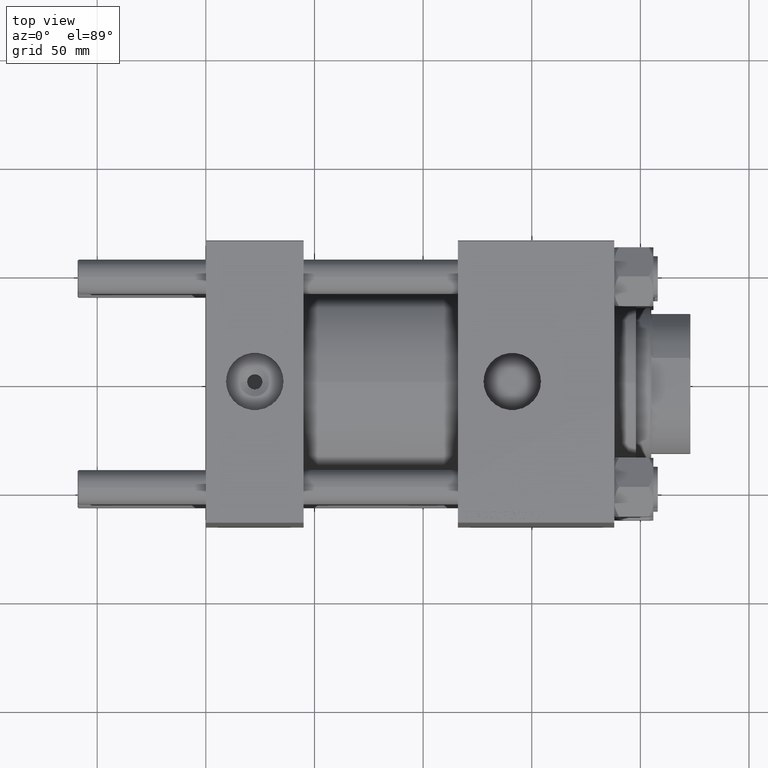
[diagram: clean part render]
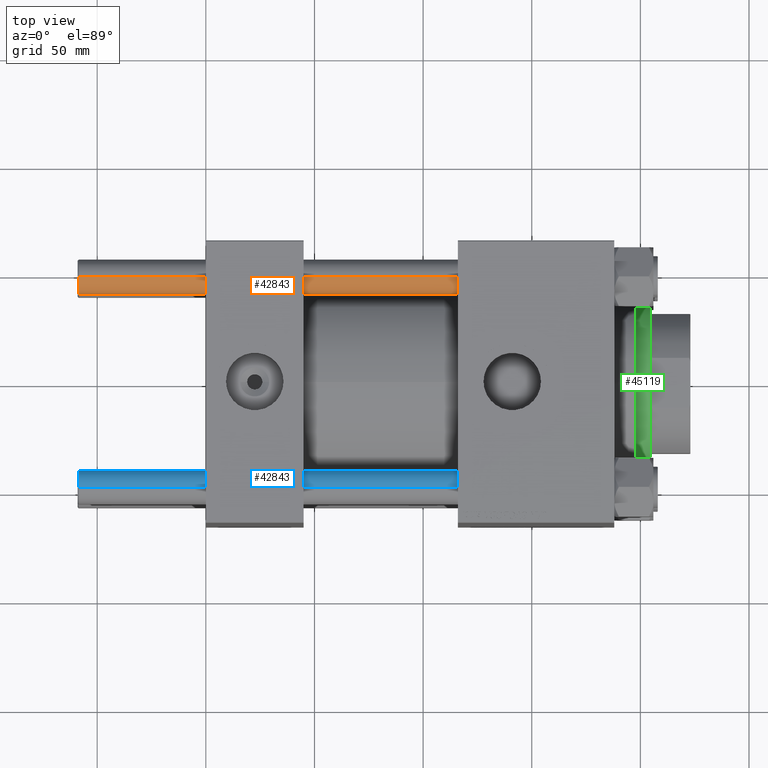
[diagram: same view with three faces highlighted in distinct colors, each labeled with its STEP entity id]
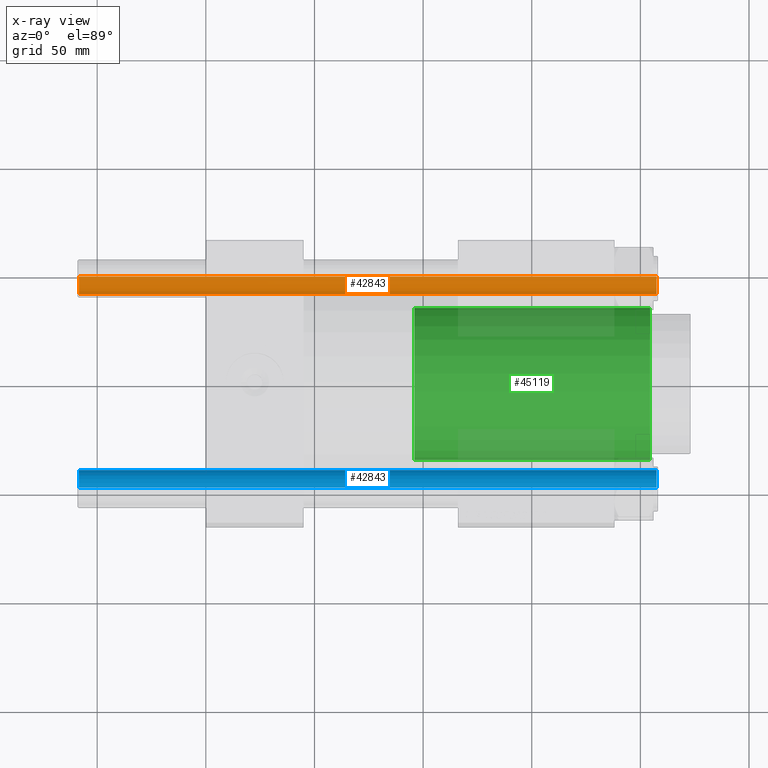
[diagram: x-ray of the same camera — body ghosted, the three highlighted faces saturated]
A machine part, top view with three faces highlighted in distinct colors.
The next image is the same camera in x-ray (body ghosted, the three faces saturated) — at least one of them is partly hidden behind the body in this view.
Their STEP definitions:

[orange] entity #42843 — the highlighted cylindrical surface (edge-blend (fillet) strip) has radius 8 mm, axis along (-1, -0, -0).
#468 = DIRECTION ( 'NONE',  ( -0.000000000000000000, -0.000000000000000000, 1.000000000000000000 ) ) ;
#557 = VERTEX_POINT ( 'NONE', #48280 ) ;
#1386 = ORIENTED_EDGE ( 'NONE', *, *, #49933, .T. ) ;
#2457 = DIRECTION ( 'NONE',  ( 1.000000000000000000, 0.000000000000000000, 0.000000000000000000 ) ) ;
#9502 = CARTESIAN_POINT ( 'NONE',  ( 0.000000000000000000, 0.000000000000000000, 267.0000000000000000 ) ) ;
#11636 = DIRECTION ( 'NONE',  ( 1.000000000000000000, 0.000000000000000000, 0.000000000000000000 ) ) ;
#12449 = VECTOR ( 'NONE', #40959, 1000.000000000000000 ) ;
#13747 = LINE ( 'NONE', #29242, #12449 ) ;
#16978 = AXIS2_PLACEMENT_3D ( 'NONE', #29364, #48459, #2457 ) ;
#17572 = ORIENTED_EDGE ( 'NONE', *, *, #24168, .F. ) ;
#21175 = FACE_OUTER_BOUND ( 'NONE', #30938, .T. ) ;
#23973 = LINE ( 'NONE', #28038, #37730 ) ;
#24168 = EDGE_CURVE ( 'NONE', #33930, #38701, #13747, .T. ) ;
#24253 = DIRECTION ( 'NONE',  ( -0.000000000000000000, -0.000000000000000000, -1.000000000000000000 ) ) ;
#24653 = ORIENTED_EDGE ( 'NONE', *, *, #42455, .T. ) ;
#27231 = VERTEX_POINT ( 'NONE', #27438 ) ;
#27438 = CARTESIAN_POINT ( 'NONE',  ( -8.000000000000000000, 0.000000000000000000, 266.5000000000000568 ) ) ;
#28038 = CARTESIAN_POINT ( 'NONE',  ( -8.000000000000000000, 0.000000000000000000, 267.0000000000000000 ) ) ;
#28317 = DIRECTION ( 'NONE',  ( -1.000000000000000000, 0.000000000000000000, 0.000000000000000000 ) ) ;
#28538 = EDGE_CURVE ( 'NONE', #27231, #557, #23973, .T. ) ;
#29242 = CARTESIAN_POINT ( 'NONE',  ( 8.000000000000000000, 9.797174393178825657E-16, 267.0000000000000000 ) ) ;
#29364 = CARTESIAN_POINT ( 'NONE',  ( 0.000000000000000000, 0.000000000000000000, 266.5000000000000568 ) ) ;
#30793 = AXIS2_PLACEMENT_3D ( 'NONE', #50300, #468, #11636 ) ;
#30938 = EDGE_LOOP ( 'NONE', ( #17572, #1386, #48086, #24653 ) ) ;
#33930 = VERTEX_POINT ( 'NONE', #41952 ) ;
#34023 = AXIS2_PLACEMENT_3D ( 'NONE', #9502, #24253, #28317 ) ;
#37730 = VECTOR ( 'NONE', #47382, 1000.000000000000000 ) ;
#38701 = VERTEX_POINT ( 'NONE', #39218 ) ;
#39218 = CARTESIAN_POINT ( 'NONE',  ( 8.000000000000000000, 9.797174393178825657E-16, 0.5000000000000559552 ) ) ;
#40959 = DIRECTION ( 'NONE',  ( -0.000000000000000000, -0.000000000000000000, -1.000000000000000000 ) ) ;
#41952 = CARTESIAN_POINT ( 'NONE',  ( 8.000000000000000000, 9.797174393178825657E-16, 266.5000000000000568 ) ) ;
#42455 = EDGE_CURVE ( 'NONE', #557, #38701, #50314, .T. ) ;
#42843 = ADVANCED_FACE ( 'NONE', ( #21175 ), #44322, .T. ) ;
#44322 = CYLINDRICAL_SURFACE ( 'NONE', #34023, 8.000000000000000000 ) ;
#44562 = CIRCLE ( 'NONE', #16978, 8.000000000000000000 ) ;
#47382 = DIRECTION ( 'NONE',  ( -0.000000000000000000, -0.000000000000000000, -1.000000000000000000 ) ) ;
#48086 = ORIENTED_EDGE ( 'NONE', *, *, #28538, .T. ) ;
#48280 = CARTESIAN_POINT ( 'NONE',  ( -8.000000000000000000, 0.000000000000000000, 0.5000000000000559552 ) ) ;
#48459 = DIRECTION ( 'NONE',  ( 0.000000000000000000, 0.000000000000000000, -1.000000000000000000 ) ) ;
#49933 = EDGE_CURVE ( 'NONE', #33930, #27231, #44562, .T. ) ;
#50300 = CARTESIAN_POINT ( 'NONE',  ( 0.000000000000000000, 0.000000000000000000, 0.5000000000000559552 ) ) ;
#50314 = CIRCLE ( 'NONE', #30793, 8.000000000000000000 ) ;

[blue] entity #42843 — the highlighted cylindrical surface (edge-blend (fillet) strip) has radius 8 mm, axis along (1, -0, 0).
#468 = DIRECTION ( 'NONE',  ( -0.000000000000000000, -0.000000000000000000, 1.000000000000000000 ) ) ;
#557 = VERTEX_POINT ( 'NONE', #48280 ) ;
#1386 = ORIENTED_EDGE ( 'NONE', *, *, #49933, .T. ) ;
#2457 = DIRECTION ( 'NONE',  ( 1.000000000000000000, 0.000000000000000000, 0.000000000000000000 ) ) ;
#9502 = CARTESIAN_POINT ( 'NONE',  ( 0.000000000000000000, 0.000000000000000000, 267.0000000000000000 ) ) ;
#11636 = DIRECTION ( 'NONE',  ( 1.000000000000000000, 0.000000000000000000, 0.000000000000000000 ) ) ;
#12449 = VECTOR ( 'NONE', #40959, 1000.000000000000000 ) ;
#13747 = LINE ( 'NONE', #29242, #12449 ) ;
#16978 = AXIS2_PLACEMENT_3D ( 'NONE', #29364, #48459, #2457 ) ;
#17572 = ORIENTED_EDGE ( 'NONE', *, *, #24168, .F. ) ;
#21175 = FACE_OUTER_BOUND ( 'NONE', #30938, .T. ) ;
#23973 = LINE ( 'NONE', #28038, #37730 ) ;
#24168 = EDGE_CURVE ( 'NONE', #33930, #38701, #13747, .T. ) ;
#24253 = DIRECTION ( 'NONE',  ( -0.000000000000000000, -0.000000000000000000, -1.000000000000000000 ) ) ;
#24653 = ORIENTED_EDGE ( 'NONE', *, *, #42455, .T. ) ;
#27231 = VERTEX_POINT ( 'NONE', #27438 ) ;
#27438 = CARTESIAN_POINT ( 'NONE',  ( -8.000000000000000000, 0.000000000000000000, 266.5000000000000568 ) ) ;
#28038 = CARTESIAN_POINT ( 'NONE',  ( -8.000000000000000000, 0.000000000000000000, 267.0000000000000000 ) ) ;
#28317 = DIRECTION ( 'NONE',  ( -1.000000000000000000, 0.000000000000000000, 0.000000000000000000 ) ) ;
#28538 = EDGE_CURVE ( 'NONE', #27231, #557, #23973, .T. ) ;
#29242 = CARTESIAN_POINT ( 'NONE',  ( 8.000000000000000000, 9.797174393178825657E-16, 267.0000000000000000 ) ) ;
#29364 = CARTESIAN_POINT ( 'NONE',  ( 0.000000000000000000, 0.000000000000000000, 266.5000000000000568 ) ) ;
#30793 = AXIS2_PLACEMENT_3D ( 'NONE', #50300, #468, #11636 ) ;
#30938 = EDGE_LOOP ( 'NONE', ( #17572, #1386, #48086, #24653 ) ) ;
#33930 = VERTEX_POINT ( 'NONE', #41952 ) ;
#34023 = AXIS2_PLACEMENT_3D ( 'NONE', #9502, #24253, #28317 ) ;
#37730 = VECTOR ( 'NONE', #47382, 1000.000000000000000 ) ;
#38701 = VERTEX_POINT ( 'NONE', #39218 ) ;
#39218 = CARTESIAN_POINT ( 'NONE',  ( 8.000000000000000000, 9.797174393178825657E-16, 0.5000000000000559552 ) ) ;
#40959 = DIRECTION ( 'NONE',  ( -0.000000000000000000, -0.000000000000000000, -1.000000000000000000 ) ) ;
#41952 = CARTESIAN_POINT ( 'NONE',  ( 8.000000000000000000, 9.797174393178825657E-16, 266.5000000000000568 ) ) ;
#42455 = EDGE_CURVE ( 'NONE', #557, #38701, #50314, .T. ) ;
#42843 = ADVANCED_FACE ( 'NONE', ( #21175 ), #44322, .T. ) ;
#44322 = CYLINDRICAL_SURFACE ( 'NONE', #34023, 8.000000000000000000 ) ;
#44562 = CIRCLE ( 'NONE', #16978, 8.000000000000000000 ) ;
#47382 = DIRECTION ( 'NONE',  ( -0.000000000000000000, -0.000000000000000000, -1.000000000000000000 ) ) ;
#48086 = ORIENTED_EDGE ( 'NONE', *, *, #28538, .T. ) ;
#48280 = CARTESIAN_POINT ( 'NONE',  ( -8.000000000000000000, 0.000000000000000000, 0.5000000000000559552 ) ) ;
#48459 = DIRECTION ( 'NONE',  ( 0.000000000000000000, 0.000000000000000000, -1.000000000000000000 ) ) ;
#49933 = EDGE_CURVE ( 'NONE', #33930, #27231, #44562, .T. ) ;
#50300 = CARTESIAN_POINT ( 'NONE',  ( 0.000000000000000000, 0.000000000000000000, 0.5000000000000559552 ) ) ;
#50314 = CIRCLE ( 'NONE', #30793, 8.000000000000000000 ) ;

[green] entity #45119 — the highlighted cylindrical surface (partial cylindrical patch) has radius 35 mm, axis along (-1, 0, 0).
#952 = ORIENTED_EDGE ( 'NONE', *, *, #22564, .T. ) ;
#2661 = DIRECTION ( 'NONE',  ( 0.000000000000000000, 0.000000000000000000, -1.000000000000000000 ) ) ;
#2916 = DIRECTION ( 'NONE',  ( 1.000000000000000000, 0.000000000000000000, 0.000000000000000000 ) ) ;
#7477 = CARTESIAN_POINT ( 'NONE',  ( 35.00000000000000711, 4.286263797015737285E-15, 160.0000000000000000 ) ) ;
#7733 = EDGE_CURVE ( 'NONE', #15549, #12132, #11197, .T. ) ;
#8579 = DIRECTION ( 'NONE',  ( -0.000000000000000000, -0.000000000000000000, -1.000000000000000000 ) ) ;
#11197 = CIRCLE ( 'NONE', #45267, 35.00000000000000711 ) ;
#11793 = DIRECTION ( 'NONE',  ( -0.000000000000000000, -0.000000000000000000, -1.000000000000000000 ) ) ;
#12132 = VERTEX_POINT ( 'NONE', #20164 ) ;
#13785 = DIRECTION ( 'NONE',  ( -0.000000000000000000, -0.000000000000000000, -1.000000000000000000 ) ) ;
#15212 = ORIENTED_EDGE ( 'NONE', *, *, #7733, .T. ) ;
#15549 = VERTEX_POINT ( 'NONE', #24027 ) ;
#15657 = EDGE_CURVE ( 'NONE', #15549, #49845, #21202, .T. ) ;
#16931 = FACE_OUTER_BOUND ( 'NONE', #47172, .T. ) ;
#17801 = ORIENTED_EDGE ( 'NONE', *, *, #22920, .T. ) ;
#17918 = DIRECTION ( 'NONE',  ( 0.000000000000000000, 0.000000000000000000, 1.000000000000000000 ) ) ;
#18345 = LINE ( 'NONE', #37938, #44842 ) ;
#18684 = DIRECTION ( 'NONE',  ( 1.000000000000000000, 0.000000000000000000, 0.000000000000000000 ) ) ;
#20164 = CARTESIAN_POINT ( 'NONE',  ( -35.00000000000000711, 0.000000000000000000, 159.5000000000000000 ) ) ;
#20502 = AXIS2_PLACEMENT_3D ( 'NONE', #30114, #17918, #18684 ) ;
#20513 = CARTESIAN_POINT ( 'NONE',  ( 35.00000000000000711, 4.286263797015737285E-15, 51.00000000000000000 ) ) ;
#21202 = LINE ( 'NONE', #7477, #25218 ) ;
#22564 = EDGE_CURVE ( 'NONE', #12132, #28122, #18345, .T. ) ;
#22920 = EDGE_CURVE ( 'NONE', #28122, #49845, #46497, .T. ) ;
#23427 = AXIS2_PLACEMENT_3D ( 'NONE', #39348, #8579, #32462 ) ;
#24027 = CARTESIAN_POINT ( 'NONE',  ( 35.00000000000000711, 4.286263797015737285E-15, 159.5000000000000000 ) ) ;
#25218 = VECTOR ( 'NONE', #11793, 1000.000000000000000 ) ;
#25290 = ORIENTED_EDGE ( 'NONE', *, *, #15657, .F. ) ;
#26779 = CARTESIAN_POINT ( 'NONE',  ( 0.000000000000000000, 0.000000000000000000, 159.5000000000000000 ) ) ;
#28122 = VERTEX_POINT ( 'NONE', #34585 ) ;
#30114 = CARTESIAN_POINT ( 'NONE',  ( 0.000000000000000000, 0.000000000000000000, 51.00000000000000000 ) ) ;
#32462 = DIRECTION ( 'NONE',  ( -1.000000000000000000, 0.000000000000000000, 0.000000000000000000 ) ) ;
#34585 = CARTESIAN_POINT ( 'NONE',  ( -35.00000000000000711, 0.000000000000000000, 51.00000000000000000 ) ) ;
#37938 = CARTESIAN_POINT ( 'NONE',  ( -35.00000000000000711, 0.000000000000000000, 160.0000000000000000 ) ) ;
#39348 = CARTESIAN_POINT ( 'NONE',  ( 0.000000000000000000, 0.000000000000000000, 160.0000000000000000 ) ) ;
#44842 = VECTOR ( 'NONE', #13785, 1000.000000000000000 ) ;
#45119 = ADVANCED_FACE ( 'NONE', ( #16931 ), #46973, .T. ) ;
#45267 = AXIS2_PLACEMENT_3D ( 'NONE', #26779, #2661, #2916 ) ;
#46497 = CIRCLE ( 'NONE', #20502, 35.00000000000000711 ) ;
#46973 = CYLINDRICAL_SURFACE ( 'NONE', #23427, 35.00000000000000711 ) ;
#47172 = EDGE_LOOP ( 'NONE', ( #25290, #15212, #952, #17801 ) ) ;
#49845 = VERTEX_POINT ( 'NONE', #20513 ) ;